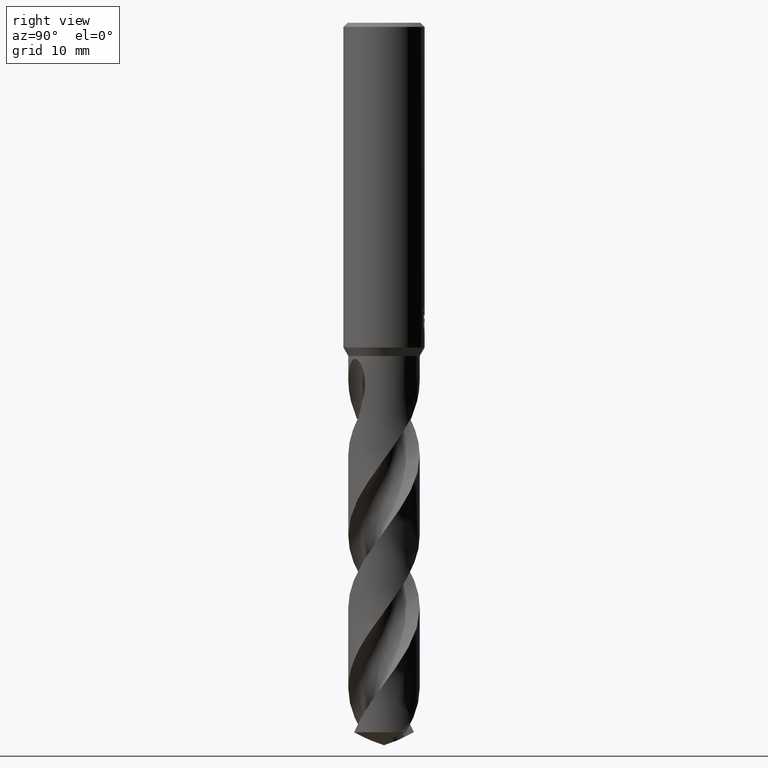
[diagram: clean part render]
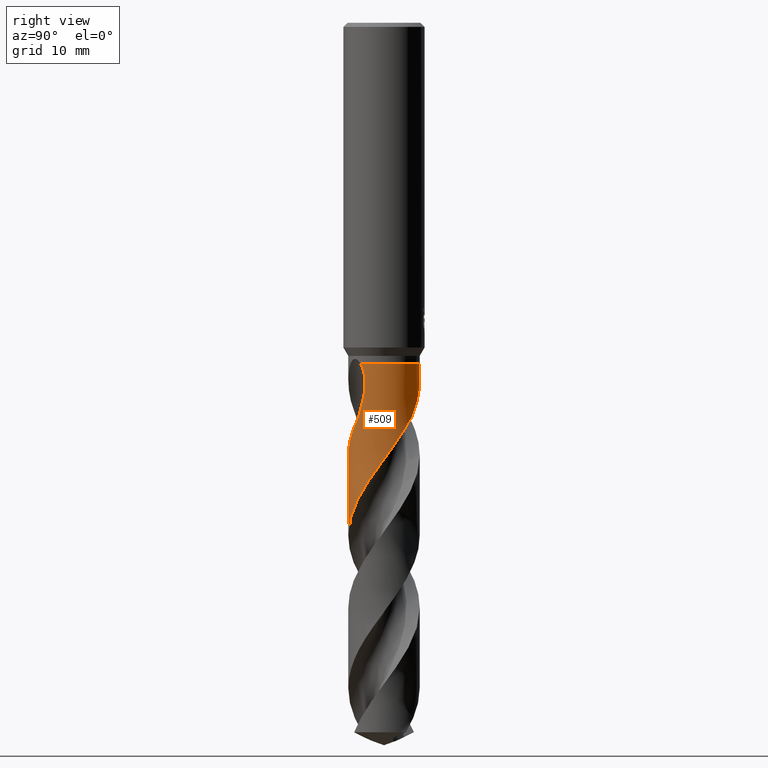
[diagram: same view with one face highlighted and labeled with its STEP entity id]
A machine part, right view. The second image highlights one B-rep face of the part: STEP entity #509.
In plain terms, the highlighted conical surface has half-angle 0 deg.
Its self-contained STEP definition (entity closure, byte-faithful):
#319=VERTEX_POINT('',#815);
#323=EDGE_CURVE('',#427,#319,#819,.T.);
#367=EDGE_CURVE('',#529,#319,#868,.T.);
#393=EDGE_CURVE('',#491,#583,#897,.T.);
#427=VERTEX_POINT('',#935);
#431=EDGE_CURVE('',#539,#663,#939,.T.);
#451=VERTEX_POINT('',#961);
#491=VERTEX_POINT('',#1002);
#509=ADVANCED_FACE('',(#1021),#1022,.T.);
#525=EDGE_CURVE('',#427,#539,#1040,.T.);
#529=VERTEX_POINT('',#1044);
#539=VERTEX_POINT('',#1054);
#553=EDGE_CURVE('',#583,#451,#1068,.T.);
#583=VERTEX_POINT('',#1100);
#663=VERTEX_POINT('',#1189);
#673=EDGE_CURVE('',#451,#529,#1200,.T.);
#699=EDGE_CURVE('',#491,#663,#1229,.T.);
#815=CARTESIAN_POINT('',(-1.51431725377612E-011,-4.39992481637957,-53.2662717638973));
#819=LINE('',#1622,#1623);
#868=B_SPLINE_CURVE_WITH_KNOTS('',3,(#1755,#1756,#1757,#1758,#1759,#1760,#1761,#1762,#1763,#1764,#1765,#1766,#1767,#1768,#1769,#1770,#1771,#1772,#1773,#1774,#1775,#1776,#1777,#1778,#1779,#1780,#1781,#1782,#1783,#1784,#1785,#1786,#1787,#1788,#1789,#1790,#1791,#1792,#1793,#1794,#1795,#1796,#1797,#1798,#1799,#1800,#1801,#1802,#1803,#1804,#1805,#1806,#1807,#1808,#1809,#1810,#1811,#1812,#1813,#1814,#1815,#1816,#1817,#1818,#1819,#1820,#1821,#1822,#1823,#1824,#1825,#1826,#1827,#1828,#1829,#1830,#1831,#1832,#1833,#1834,#1835,#1836,#1837,#1838,#1839,#1840,#1841,#1842,#1843,#1844,#1845,#1846),.UNSPECIFIED.,.F.,.F.,(4,2,2,2,2,2,2,2,2,2,2,2,2,2,2,2,2,2,2,2,2,2,2,2,2,2,2,2,2,2,2,2,2,2,2,2,2,2,2,2,2,2,2,2,2,4),(0.0,0.188253538056721,0.310667572592986,0.368015120047545,0.859253428970389,1.03084854142186,1.14065679480977,1.24377536312186,1.38197476462175,1.53557516183192,1.61382985139246,2.17629791470346,2.55120611204369,2.92958990462688,3.33348730720118,4.40505102017217,4.94586347131758,7.01752758635086,7.6267183580683,8.22875742611331,8.83773357220807,10.0448978523811,12.3636783740145,12.743547220753,14.2192951940284,16.6650966893484,17.8755386756743,20.2760069508194,20.8856519937772,23.300777209704,24.5182944323195,25.5092115297576,27.3595020791002,28.5633367451777,31.0973801153442,31.5007969126921,32.9889989810154,35.4329396377213,36.5814572308411,38.9889780654192,40.1206590901415,41.0976029802924,43.4730550830811,44.0412000153713,46.0472631825075,48.0635370614902),.UNSPECIFIED.);
#897=CIRCLE('',#2589,4.3999);
#935=CARTESIAN_POINT('',(1.72244747526012E-012,-4.39994662907025,-63.1689129008052));
#939=B_SPLINE_CURVE_WITH_KNOTS('',3,(#2918,#2919,#2920,#2921,#2922,#2923,#2924,#2925,#2926,#2927,#2928,#2929,#2930,#2931),.UNSPECIFIED.,.F.,.F.,(4,2,2,2,2,2,4),(0.0,2.15576154881915,3.33284950966387,4.3989839587945,5.63755759780346,7.12535606732662,7.89111209973637),.UNSPECIFIED.);
#961=CARTESIAN_POINT('',(3.57993875328587,-2.55797593519678,-46.2485858172271));
#1002=CARTESIAN_POINT('',(-5.38595886303557E-016,4.3999,-42.0));
#1021=FACE_OUTER_BOUND('',#3570,.T.);
#1022=CONICAL_SURFACE('',#3571,4.39995,2.20271444614333E-006);
#1040=B_SPLINE_CURVE_WITH_KNOTS('',3,(#3593,#3594,#3595,#3596,#3597,#3598,#3599,#3600,#3601,#3602,#3603,#3604,#3605,#3606,#3607,#3608,#3609,#3610,#3611,#3612,#3613,#3614,#3615,#3616,#3617,#3618,#3619,#3620,#3621,#3622,#3623,#3624,#3625,#3626,#3627,#3628,#3629,#3630,#3631,#3632,#3633,#3634,#3635,#3636,#3637,#3638,#3639,#3640,#3641,#3642,#3643,#3644,#3645,#3646,#3647,#3648,#3649,#3650,#3651,#3652,#3653,#3654,#3655,#3656,#3657,#3658,#3659,#3660,#3661,#3662,#3663,#3664,#3665,#3666,#3667,#3668,#3669,#3670,#3671,#3672,#3673,#3674),.UNSPECIFIED.,.F.,.F.,(4,2,2,2,2,2,2,2,2,2,2,2,2,2,2,2,2,2,2,2,2,2,2,2,2,2,2,2,2,2,2,2,2,2,2,2,2,2,2,2,4),(0.0,2.38158475155126,3.34370111018353,5.29067186178256,6.92036466557538,7.8318580498891,10.2543865236871,10.8557057970924,13.2841955630198,14.204163846204,16.7424903560817,17.0421551577618,19.3072950229589,20.4294385659862,22.8588911608126,23.4617969178492,25.8968159008622,26.8316102976643,28.1549824528321,29.377158813288,29.525532420683,31.6183888025982,33.3552376624124,35.4947608440602,36.0089061970866,38.2647980770541,39.4836777008711,40.1388972420984,41.1095081189943,42.8168045660494,45.2058561563298,45.278722332016,45.877221782044,46.5144959370816,46.6651789055228,46.9689588572249,47.1513541987364,47.327704703687,47.5742234442607,48.1053654664538,48.6820044692768),.UNSPECIFIED.);
#1044=CARTESIAN_POINT('',(3.05827995742593,-3.16325350917889,-48.6578));
#1054=CARTESIAN_POINT('',(2.80371770920414,3.39093144555015,-48.6578));
#1068=B_SPLINE_CURVE_WITH_KNOTS('',3,(#3805,#3806,#3807,#3808,#3809,#3810,#3811,#3812),.UNSPECIFIED.,.F.,.F.,(4,2,2,4),(0.0,0.824741990477597,1.97805505681341,3.07378685117048),.UNSPECIFIED.);
#1100=CARTESIAN_POINT('',(3.33358693144173,-2.87164032924058,-42.0));
#1189=CARTESIAN_POINT('',(-1.3052254413547E-012,4.39990436294102,-43.9807111286106));
#1200=B_SPLINE_CURVE_WITH_KNOTS('',3,(#4778,#4779,#4780,#4781),.UNSPECIFIED.,.F.,.F.,(4,4),(0.0,2.52862535946472),.UNSPECIFIED.);
#1229=LINE('',#5013,#5014);
#1622=CARTESIAN_POINT('',(5.39039335964828E-016,-4.39995,-64.6992654846144));
#1623=VECTOR('',#5287,1.0);
#1755=CARTESIAN_POINT('',(3.05827995742593,-3.1632535091789,-48.6578));
#1756=CARTESIAN_POINT('',(3.03274113799333,-3.18794497343172,-48.7095282399192));
#1757=CARTESIAN_POINT('',(3.00683337157105,-3.21239597599759,-48.7612035636527));
#1758=CARTESIAN_POINT('',(2.96333749900607,-3.25244929409958,-48.8463601099921));
#1759=CARTESIAN_POINT('',(2.94603140084556,-3.26813446207818,-48.8798406696071));
#1760=CARTESIAN_POINT('',(2.92031716202851,-3.29106712314585,-48.9289555744437));
#1761=CARTESIAN_POINT('',(2.91207369292233,-3.29836370311345,-48.9446075661831));
#1762=CARTESIAN_POINT('',(2.8327928203473,-3.36800705533137,-49.0942285644612));
#1763=CARTESIAN_POINT('',(2.75993428326232,-3.42804262245127,-49.2246758590813));
#1764=CARTESIAN_POINT('',(2.65595325417998,-3.50803781195071,-49.402032702599));
#1765=CARTESIAN_POINT('',(2.62871436714092,-3.52849781307004,-49.4477501374463));
#1766=CARTESIAN_POINT('',(2.5834397712833,-3.56168282961102,-49.5226861084913));
#1767=CARTESIAN_POINT('',(2.5656488062556,-3.57452036517534,-49.5518738610964));
#1768=CARTESIAN_POINT('',(2.53089551448035,-3.59920290382366,-49.6084525119323));
#1769=CARTESIAN_POINT('',(2.51396498636021,-3.61104915493485,-49.6358181287831));
#1770=CARTESIAN_POINT('',(2.4741048789437,-3.63852208090179,-49.6998569088859));
#1771=CARTESIAN_POINT('',(2.45112237018224,-3.65404413336063,-49.7364833079354));
#1772=CARTESIAN_POINT('',(2.40227874117759,-3.68636389944203,-49.8138727480712));
#1773=CARTESIAN_POINT('',(2.37642235953927,-3.70308446461941,-49.8545784308049));
#1774=CARTESIAN_POINT('',(2.3371848846948,-3.72787951608242,-49.916143173978));
#1775=CARTESIAN_POINT('',(2.32398714590959,-3.73612160146454,-49.9368225893677));
#1776=CARTESIAN_POINT('',(2.21447516172978,-3.80370065834628,-50.1083802810052));
#1777=CARTESIAN_POINT('',(2.11672377716339,-3.85890562919365,-50.2608235982155));
#1778=CARTESIAN_POINT('',(1.95186400477847,-3.94398497322683,-50.514283840619));
#1779=CARTESIAN_POINT('',(1.8851353093341,-3.97630972175812,-50.6159296659601));
#1780=CARTESIAN_POINT('',(1.74959291836438,-4.03779703801654,-50.8199076038289));
#1781=CARTESIAN_POINT('',(1.68062974751858,-4.06698914189111,-50.9224429267928));
#1782=CARTESIAN_POINT('',(1.53634995360708,-4.12375241219877,-51.133990831475));
#1783=CARTESIAN_POINT('',(1.46132371641406,-4.15093255438044,-51.2422543248823));
#1784=CARTESIAN_POINT('',(1.18374975813672,-4.24301236800507,-51.6389295523521));
#1785=CARTESIAN_POINT('',(0.977687578184422,-4.29516731980264,-51.9256287622282));
#1786=CARTESIAN_POINT('',(0.663323779880128,-4.35095282181933,-52.3593771784406));
#1787=CARTESIAN_POINT('',(0.557387531208896,-4.36578102656632,-52.5050773081274));
#1788=CARTESIAN_POINT('',(0.0443070718156574,-4.41867333896989,-53.2080779623062));
#1789=CARTESIAN_POINT('',(-0.366823641469718,-4.40371470225804,-53.7612787785732));
#1790=CARTESIAN_POINT('',(-0.888906610599101,-4.31088467323919,-54.4819705272098));
#1791=CARTESIAN_POINT('',(-1.00660210590204,-4.28492995979938,-54.6456843271025));
#1792=CARTESIAN_POINT('',(-1.23814946809992,-4.2238046997793,-54.9713726345712));
#1793=CARTESIAN_POINT('',(-1.35195591792208,-4.18876562903302,-55.1332583267872));
#1794=CARTESIAN_POINT('',(-1.57773798007375,-4.10908990620942,-55.4588961500464));
#1795=CARTESIAN_POINT('',(-1.6896065897274,-4.06437225520235,-55.6225591964736));
#1796=CARTESIAN_POINT('',(-2.0174059001809,-3.91745787962671,-56.1108022966687));
#1797=CARTESIAN_POINT('',(-2.226880419598,-3.80227756482297,-56.4345893219885));
#1798=CARTESIAN_POINT('',(-2.80820363038687,-3.41809799750832,-57.382992921225));
#1799=CARTESIAN_POINT('',(-3.14893949597859,-3.10710687173273,-58.0021544099306));
#1800=CARTESIAN_POINT('',(-3.48253774769651,-2.69017184058165,-58.7274458595891));
#1801=CARTESIAN_POINT('',(-3.52796001898143,-2.63032037918727,-58.8295083419442));
#1802=CARTESIAN_POINT('',(-3.7422046850842,-2.33248697384406,-59.3285286106741));
#1803=CARTESIAN_POINT('',(-3.88864707780864,-2.07920061136263,-59.7252791308443));
#1804=CARTESIAN_POINT('',(-4.20828061122223,-1.37253306556181,-60.7799388760555));
#1805=CARTESIAN_POINT('',(-4.33353346279548,-0.902042083797696,-61.4317859696254));
#1806=CARTESIAN_POINT('',(-4.40265609792685,-0.182686976720865,-62.4153987977477));
#1807=CARTESIAN_POINT('',(-4.40609198567817,0.0570804888420597,-62.7404349251049));
#1808=CARTESIAN_POINT('',(-4.35800668474682,0.770061367145931,-63.7111945041948));
#1809=CARTESIAN_POINT('',(-4.24949419146798,1.23558141903937,-64.3530800973694));
#1810=CARTESIAN_POINT('',(-4.02296818196669,1.78600910053972,-65.1627248795346));
#1811=CARTESIAN_POINT('',(-3.97251074161085,1.89559605801553,-65.3265952902302));
#1812=CARTESIAN_POINT('',(-3.70002932449366,2.42853341116763,-66.1398567688944));
#1813=CARTESIAN_POINT('',(-3.4146514189255,2.81563167991096,-66.7851670706248));
#1814=CARTESIAN_POINT('',(-2.90058940031311,3.31725046704215,-67.7623411973912));
#1815=CARTESIAN_POINT('',(-2.71469369289167,3.47104427314211,-68.0890415276213));
#1816=CARTESIAN_POINT('',(-2.35612981592476,3.72112416232058,-68.6827082119771));
#1817=CARTESIAN_POINT('',(-2.18803949914704,3.82236916222418,-68.9486052220835));
#1818=CARTESIAN_POINT('',(-1.68860964957102,4.07946969769016,-69.7130290134809));
#1819=CARTESIAN_POINT('',(-1.34351104898729,4.20580722568235,-70.2094753626278));
#1820=CARTESIAN_POINT('',(-0.754297210259757,4.34137226516616,-71.0307164132686));
#1821=CARTESIAN_POINT('',(-0.518238062886315,4.37581997675078,-71.3533886249528));
#1822=CARTESIAN_POINT('',(0.219489885111016,4.42297265816051,-72.3592218610182));
#1823=CARTESIAN_POINT('',(0.721821067556148,4.3692655753386,-73.0365303574574));
#1824=CARTESIAN_POINT('',(1.28127018265141,4.21004334510421,-73.8265096267477));
#1825=CARTESIAN_POINT('',(1.35745516202413,4.1860993248297,-73.934947138999));
#1826=CARTESIAN_POINT('',(1.71137741724076,4.06419303157761,-74.4439752168828));
#1827=CARTESIAN_POINT('',(1.97954376462642,3.94054904229826,-74.8443418959433));
#1828=CARTESIAN_POINT('',(2.65011539203296,3.54551187052584,-75.9025949577159));
#1829=CARTESIAN_POINT('',(3.02343854802402,3.23299788262554,-76.5544739931666));
#1830=CARTESIAN_POINT('',(3.48631285358486,2.69388863938003,-77.5216406279563));
#1831=CARTESIAN_POINT('',(3.62081488624917,2.5102282488294,-77.8303415624981));
#1832=CARTESIAN_POINT('',(3.99163242999107,1.91154793424259,-78.787069600143));
#1833=CARTESIAN_POINT('',(4.17504559798695,1.46824975650479,-79.4309808350914));
#1834=CARTESIAN_POINT('',(4.33491338904555,0.786466130688501,-80.3836753552578));
#1835=CARTESIAN_POINT('',(4.36934373624703,0.564761212500388,-80.687648299645));
#1836=CARTESIAN_POINT('',(4.40174102613936,0.14833990829398,-81.2548959508544));
#1837=CARTESIAN_POINT('',(4.40399889611685,-0.0452450790583951,-81.5172043723695));
#1838=CARTESIAN_POINT('',(4.36808005628984,-0.707605661930188,-82.4197365204348));
#1839=CARTESIAN_POINT('',(4.2675546153042,-1.1702217764699,-83.0554794891717));
#1840=CARTESIAN_POINT('',(4.05436764473914,-1.71309844932173,-83.8474335497248));
#1841=CARTESIAN_POINT('',(4.0092424210312,-1.81619341062063,-84.0001336755738));
#1842=CARTESIAN_POINT('',(3.78717828995385,-2.27484694380551,-84.6932719433881));
#1843=CARTESIAN_POINT('',(3.56640767984217,-2.60742605404574,-85.2326750280957));
#1844=CARTESIAN_POINT('',(3.04008343415547,-3.20584783491826,-86.3156742783742));
#1845=CARTESIAN_POINT('',(2.73660948936405,-3.46851297668111,-86.8556469698156));
#1846=CARTESIAN_POINT('',(2.40185767013028,-3.68660816095722,-87.3985309692288));
#2589=AXIS2_PLACEMENT_3D('',#5402,#5403,#5404);
#2918=CARTESIAN_POINT('',(2.80371770920413,3.39093144555015,-48.6578));
#2919=CARTESIAN_POINT('',(2.51348316595106,3.63090379841182,-48.0457994123778));
#2920=CARTESIAN_POINT('',(2.17977653953127,3.84422464693483,-47.47521739291));
#2921=CARTESIAN_POINT('',(1.5978897982661,4.10569330854763,-46.5220270816189));
#2922=CARTESIAN_POINT('',(1.38849970313661,4.18090785448243,-46.1866643448757));
#2923=CARTESIAN_POINT('',(0.983147956990871,4.2933177590356,-45.5374938248999));
#2924=CARTESIAN_POINT('',(0.788996004087948,4.33303177861168,-45.2267113355814));
#2925=CARTESIAN_POINT('',(0.368741122724618,4.39034807618537,-44.556899026901));
#2926=CARTESIAN_POINT('',(0.139127374482289,4.40380421035896,-44.1926259639668));
#2927=CARTESIAN_POINT('',(-0.37078491324727,4.3930775267784,-43.4133298508399));
#2928=CARTESIAN_POINT('',(-0.67311051076259,4.35990253359284,-42.9699046527819));
#2929=CARTESIAN_POINT('',(-1.14616479019225,4.25119237186679,-42.3766129955495));
#2930=CARTESIAN_POINT('',(-1.31944426832932,4.20177327874594,-42.1764895361742));
#2931=CARTESIAN_POINT('',(-1.49956764850812,4.13647396674363,-42.0));
#3570=EDGE_LOOP('',(#5534,#5535,#5536,#5537,#5538,#5539,#5540,#5541));
#3571=AXIS2_PLACEMENT_3D('',#5542,#5543,#5544);
#3593=CARTESIAN_POINT('',(3.4691537984059,2.7064685335333,-87.3985309692287));
#3594=CARTESIAN_POINT('',(3.18039644706853,3.07659567343066,-86.7583424761475));
#3595=CARTESIAN_POINT('',(2.83327123848192,3.39931179321442,-86.1197667479224));
#3596=CARTESIAN_POINT('',(2.28188978764063,3.76686784399536,-85.222612439169));
#3597=CARTESIAN_POINT('',(2.11660943128328,3.86214913267656,-84.9652324189114));
#3598=CARTESIAN_POINT('',(1.60007234031423,4.11682769845335,-84.1842782319817));
#3599=CARTESIAN_POINT('',(1.23406474656191,4.24089921043979,-83.6575946686901));
#3600=CARTESIAN_POINT('',(0.540356013476528,4.37855782838395,-82.6971696543465));
#3601=CARTESIAN_POINT('',(0.218539223104727,4.40632183614201,-82.2634895103946));
#3602=CARTESIAN_POINT('',(-0.283048252750093,4.39455999809895,-81.5807656363592));
#3603=CARTESIAN_POINT('',(-0.462163369724536,4.37933252780405,-81.334708969423));
#3604=CARTESIAN_POINT('',(-1.11221061153752,4.2837797062668,-80.4391901371984));
#3605=CARTESIAN_POINT('',(-1.56968669152961,4.1380361085482,-79.801418942155));
#3606=CARTESIAN_POINT('',(-2.100242668547,3.86818160520814,-78.9896284500561));
#3607=CARTESIAN_POINT('',(-2.20332936546526,3.8104015816171,-78.8277125177277));
#3608=CARTESIAN_POINT('',(-2.71098523386368,3.49835728108268,-78.0144343110683));
#3609=CARTESIAN_POINT('',(-3.07442594314562,3.18372152951735,-77.3756642795581));
#3610=CARTESIAN_POINT('',(-3.4962198974517,2.67750027629772,-76.4782900757237));
#3611=CARTESIAN_POINT('',(-3.60323629303814,2.53164631067567,-76.230570477048));
#3612=CARTESIAN_POINT('',(-3.97118211700218,1.95930757698793,-75.3036428898409));
#3613=CARTESIAN_POINT('',(-4.16731535044396,1.49706086256293,-74.6380051199287));
#3614=CARTESIAN_POINT('',(-4.29542393323612,0.955262765410728,-73.8769402174624));
#3615=CARTESIAN_POINT('',(-4.30779420033319,0.897840849224442,-73.7964911178208));
#3616=CARTESIAN_POINT('',(-4.40408256406251,0.402742124498966,-73.1073960588516));
#3617=CARTESIAN_POINT('',(-4.42235432045274,-0.0453339431856779,-72.5094885160724));
#3618=CARTESIAN_POINT('',(-4.34806606198611,-0.709218831594383,-71.6019702108282));
#3619=CARTESIAN_POINT('',(-4.30696178555613,-0.926491001657106,-71.2996287839045));
#3620=CARTESIAN_POINT('',(-4.12623312794869,-1.60054767225622,-70.3483114759951));
#3621=CARTESIAN_POINT('',(-3.92853087042089,-2.03806655566549,-69.7105620847118));
#3622=CARTESIAN_POINT('',(-3.59909165566834,-2.53380861801585,-68.898791785));
#3623=CARTESIAN_POINT('',(-3.52977999340848,-2.62950123691427,-68.7369106142035));
#3624=CARTESIAN_POINT('',(-3.1610833142839,-3.0976284657201,-67.9237096694803));
#3625=CARTESIAN_POINT('',(-2.80651167972177,-3.42219665742954,-67.284965794011));
#3626=CARTESIAN_POINT('',(-2.25290567876544,-3.78386822439993,-66.3843068208633));
#3627=CARTESIAN_POINT('',(-2.09346491531036,-3.87435774711817,-66.1332668210234));
#3628=CARTESIAN_POINT('',(-1.69513620076357,-4.06860421795955,-65.5296098591125));
#3629=CARTESIAN_POINT('',(-1.45172629592717,-4.1617253874523,-65.1781127836459));
#3630=CARTESIAN_POINT('',(-0.969540799331551,-4.29854136314215,-64.4990503349194));
#3631=CARTESIAN_POINT('',(-0.733736960187505,-4.34492746188682,-64.174295148199));
#3632=CARTESIAN_POINT('',(-0.46721238133018,-4.37516840264253,-63.8074672382665));
#3633=CARTESIAN_POINT('',(-0.438386538182742,-4.37815047170759,-63.7677795896039));
#3634=CARTESIAN_POINT('',(-0.00188024963702771,-4.41895046557763,-63.1680829621344));
#3635=CARTESIAN_POINT('',(0.409889869198096,-4.40008677424558,-62.6163469469507));
#3636=CARTESIAN_POINT('',(1.14971480861173,-4.26077748517724,-61.5954665651593));
#3637=CARTESIAN_POINT('',(1.47618786059476,-4.15889645572287,-61.1294872361844));
#3638=CARTESIAN_POINT('',(2.1709497292486,-3.85000789053291,-60.0956747742747));
#3639=CARTESIAN_POINT('',(2.52761809123781,-3.62571098131771,-59.5336720732338));
#3640=CARTESIAN_POINT('',(2.92343839489594,-3.28984346646158,-58.8253677008723));
#3641=CARTESIAN_POINT('',(2.99769859234366,-3.22231621543507,-58.6878005017614));
#3642=CARTESIAN_POINT('',(3.38513833369104,-2.8450359779971,-57.9489542114119));
#3643=CARTESIAN_POINT('',(3.65321021199562,-2.49175094229226,-57.3573928212274));
#3644=CARTESIAN_POINT('',(3.97868628182728,-1.89380162323564,-56.4334889174895));
#3645=CARTESIAN_POINT('',(4.07539038708545,-1.67550054017794,-56.1078971019618));
#3646=CARTESIAN_POINT('',(4.19611624244245,-1.3298049893589,-55.6094221736873));
#3647=CARTESIAN_POINT('',(4.2330454594721,-1.20711293217587,-55.4354327276328));
#3648=CARTESIAN_POINT('',(4.31129112931536,-0.898978379052373,-55.0031924148506));
#3649=CARTESIAN_POINT('',(4.34606393814583,-0.712150297465387,-54.7450079885075));
#3650=CARTESIAN_POINT('',(4.40841174392663,-0.191935294087614,-54.0332004198417));
#3651=CARTESIAN_POINT('',(4.41024669359225,0.143056223146941,-53.581492618463));
#3652=CARTESIAN_POINT('',(4.3238169896954,0.939177644855427,-52.4931800885886));
#3653=CARTESIAN_POINT('',(4.19943692295102,1.39764632219331,-51.8418914742962));
#3654=CARTESIAN_POINT('',(3.993824263967,1.84631505642651,-51.1909351453139));
#3655=CARTESIAN_POINT('',(3.98779969859159,1.85929108165607,-51.172105060962));
#3656=CARTESIAN_POINT('',(3.93071272711574,1.98067966752997,-50.9951644385671));
#3657=CARTESIAN_POINT('',(3.8760776626893,2.08539232217888,-50.8374409928236));
#3658=CARTESIAN_POINT('',(3.75665193347138,2.29395103211273,-50.5071780602227));
#3659=CARTESIAN_POINT('',(3.69204779071428,2.39622894512259,-50.3360203992345));
#3660=CARTESIAN_POINT('',(3.60959788260783,2.51611899020335,-50.1200242616536));
#3661=CARTESIAN_POINT('',(3.59374107320227,2.53871055179218,-50.0785898444302));
#3662=CARTESIAN_POINT('',(3.54567909252291,2.60585502877133,-49.9531117591768));
#3663=CARTESIAN_POINT('',(3.52525049002463,2.63333388693885,-49.8982681416123));
#3664=CARTESIAN_POINT('',(3.47599579132791,2.69771177254149,-49.7772461803035));
#3665=CARTESIAN_POINT('',(3.45694311084545,2.72209649798209,-49.7322700551899));
#3666=CARTESIAN_POINT('',(3.41820955939733,2.77056706400952,-49.6445161833988));
#3667=CARTESIAN_POINT('',(3.39860326206875,2.79459468605853,-49.6017896565207));
#3668=CARTESIAN_POINT('',(3.35011508972974,2.85270766350952,-49.5002082279802));
#3669=CARTESIAN_POINT('',(3.32071162520873,2.88691345860777,-49.4418365703216));
#3670=CARTESIAN_POINT('',(3.2240265216142,2.99579790138846,-49.2600199609514));
#3671=CARTESIAN_POINT('',(3.15270512974388,3.07106105490533,-49.1401870958067));
#3672=CARTESIAN_POINT('',(2.99131367862062,3.22879156292857,-48.8971019227308));
#3673=CARTESIAN_POINT('',(2.90094220867604,3.31054382539722,-48.7756247156479));
#3674=CARTESIAN_POINT('',(2.80371770920414,3.39093144555015,-48.6578));
#3805=CARTESIAN_POINT('',(3.33358693144173,-2.87164032924058,-42.0));
#3806=CARTESIAN_POINT('',(3.44229852524517,-2.74544157619765,-42.2187084126272));
#3807=CARTESIAN_POINT('',(3.52798305469884,-2.63150193611116,-42.4905439124316));
#3808=CARTESIAN_POINT('',(3.68182194532072,-2.41401261591024,-43.2390090680116));
#3809=CARTESIAN_POINT('',(3.73286762146872,-2.32913956487914,-43.7681043249714));
#3810=CARTESIAN_POINT('',(3.73917799721829,-2.31899944088825,-44.9217496596131));
#3811=CARTESIAN_POINT('',(3.70203852532112,-2.38709221802847,-45.5541228590302));
#3812=CARTESIAN_POINT('',(3.57993875328587,-2.55797593519678,-46.2485858172271));
#4778=CARTESIAN_POINT('',(3.57993875333849,-2.55797593512314,-46.248585817256));
#4779=CARTESIAN_POINT('',(3.43809243040742,-2.75649577289645,-47.0553744898932));
#4780=CARTESIAN_POINT('',(3.26713075151416,-2.96133107065465,-47.8669637930723));
#4781=CARTESIAN_POINT('',(3.05827995742593,-3.16325350917889,-48.6578));
#5013=CARTESIAN_POINT('',(-5.38602009335326E-016,4.39995,-64.6992654846144));
#5014=VECTOR('',#5764,1.0);
#5287=DIRECTION('',(-2.69745810640127E-022,2.20271444614154E-006,0.999999999997574));
#5402=CARTESIAN_POINT('',(0.0,0.0,-42.0));
#5403=DIRECTION('',(0.0,0.0,-1.0));
#5404=DIRECTION('',(0.0,1.0,0.0));
#5534=ORIENTED_EDGE('',*,*,#699,.F.);
#5535=ORIENTED_EDGE('',*,*,#393,.T.);
#5536=ORIENTED_EDGE('',*,*,#553,.T.);
#5537=ORIENTED_EDGE('',*,*,#673,.T.);
#5538=ORIENTED_EDGE('',*,*,#367,.T.);
#5539=ORIENTED_EDGE('',*,*,#323,.F.);
#5540=ORIENTED_EDGE('',*,*,#525,.T.);
#5541=ORIENTED_EDGE('',*,*,#431,.T.);
#5542=CARTESIAN_POINT('',(0.0,0.0,-64.6992654846144));
#5543=DIRECTION('',(0.0,-0.0,-1.0));
#5544=DIRECTION('',(0.0,1.0,0.0));
#5764=DIRECTION('',(-2.69745810640127E-022,2.20271444614154E-006,-0.999999999997574));